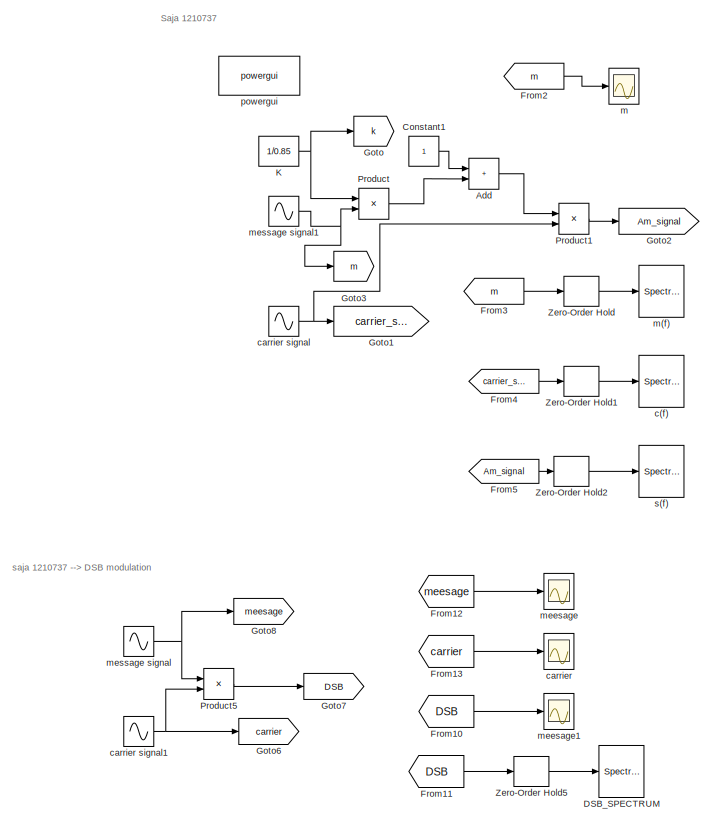
[diagram: root canvas - part 1/4, top left region]
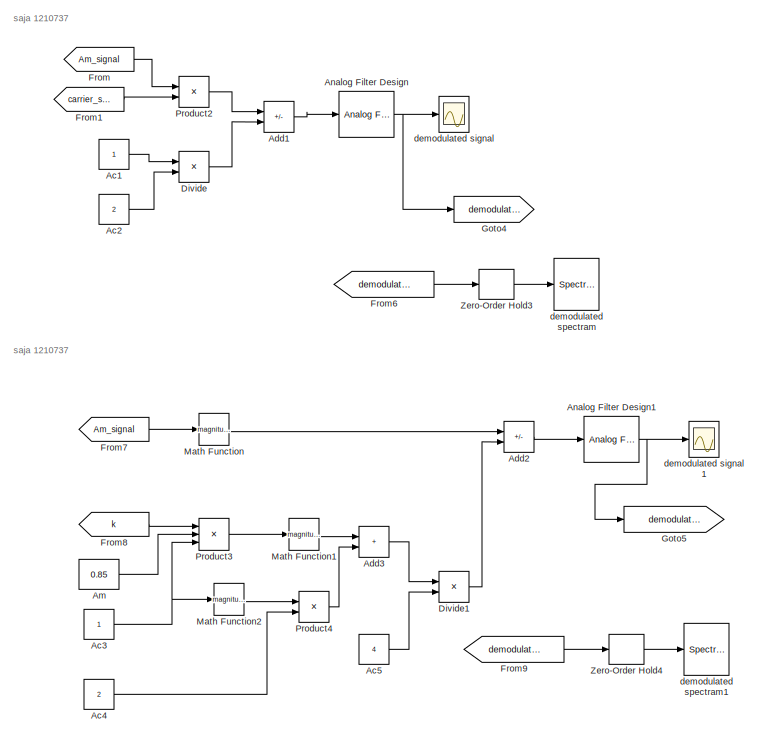
[diagram: root canvas - part 2/4, top right region]
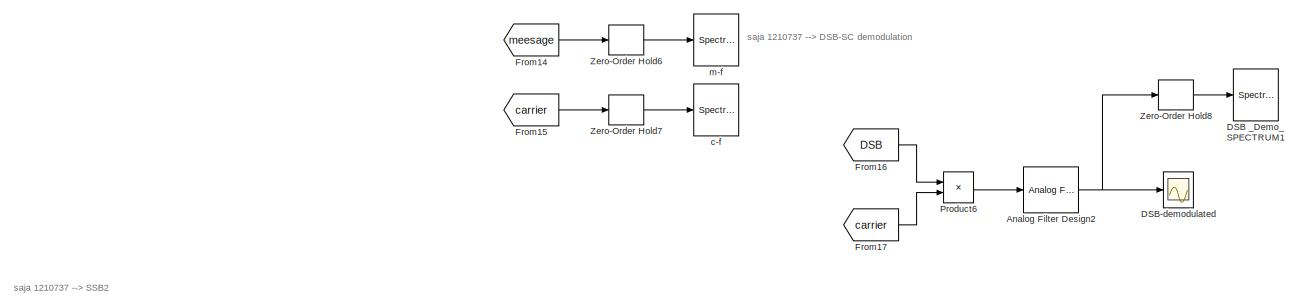
[diagram: root canvas - part 3/4, full width, middle band]
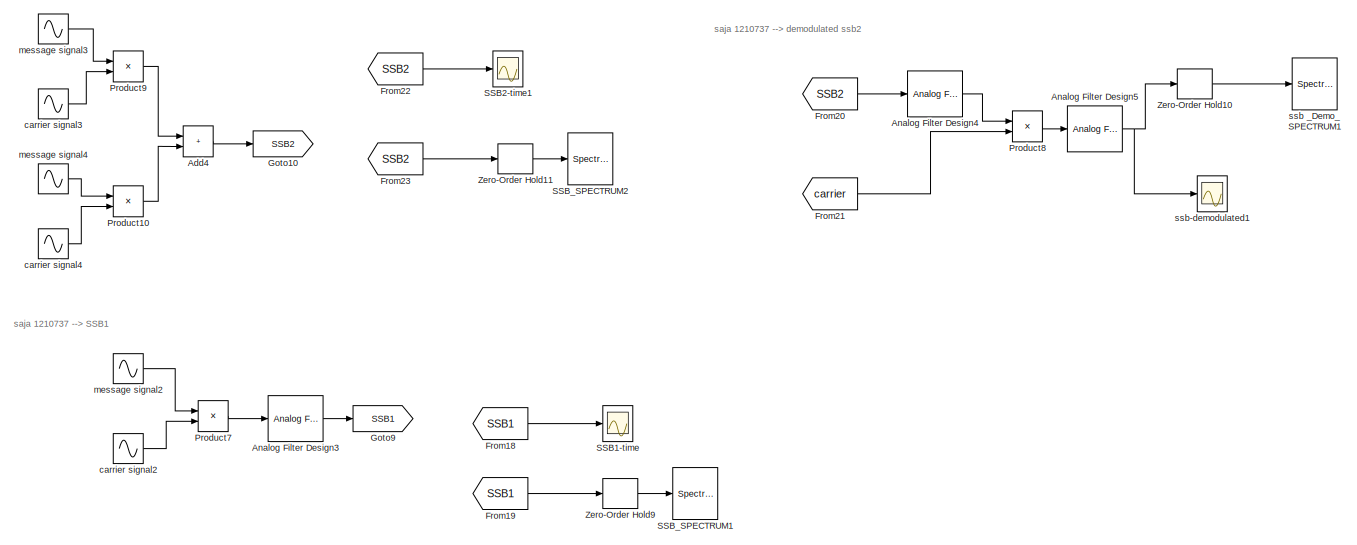
[diagram: root canvas - part 4/4, full width, bottom band]
MODEL slx_7dcb6b76a4d7
KIND model
CONFIG AbsTol = auto
CONFIG EnableMultiTasking = off
CONFIG FixedStep = auto
CONFIG MaxStep = 1e-6
CONFIG MinStep = auto
CONFIG RelTol = 1e-3
CONFIG SampleTimeConstraint = Unconstrained
CONFIG SolverName = ode23t
CONFIG StartTime = 0.0
CONFIG StopTime = 1
BLOCK [Constant] Ac1
BLOCK [Constant] Ac2
  Value = 2
BLOCK [Constant] Ac3
BLOCK [Constant] Ac4
  Value = 2
BLOCK [Constant] Ac5
  Value = 4
BLOCK [Sum] Add
  IconShape = rectangular
  Ports = [2, 1]
BLOCK [Sum] Add1
  IconShape = rectangular
  Inputs = +-
  Ports = [2, 1]
BLOCK [Sum] Add2
  IconShape = rectangular
  Inputs = +-
  Ports = [2, 1]
BLOCK [Sum] Add3
  IconShape = rectangular
  Ports = [2, 1]
BLOCK [Sum] Add4
  IconShape = rectangular
  Ports = [2, 1]
BLOCK [Constant] Am
  Value = 0.85
BLOCK [Reference] Analog Filter Design  REF=dsparch4/Analog
Filter Design
  Ports = [1, 1]
  SourceBlock = dsparch4/Analog\nFilter Design
  SourceProductBaseCode = DS
  SourceType = Analog Filter Design
BLOCK [Reference] Analog Filter Design1  REF=dsparch4/Analog
Filter Design
  Ports = [1, 1]
  SourceBlock = dsparch4/Analog\nFilter Design
  SourceProductBaseCode = DS
  SourceType = Analog Filter Design
BLOCK [Reference] Analog Filter Design2  REF=dsparch4/Analog
Filter Design
  Ports = [1, 1]
  SourceBlock = dsparch4/Analog\nFilter Design
  SourceProductBaseCode = DS
  SourceType = Analog Filter Design
BLOCK [Reference] Analog Filter Design3  REF=dsparch4/Analog
Filter Design
  Ports = [1, 1]
  SourceBlock = dsparch4/Analog\nFilter Design
  SourceProductBaseCode = DS
  SourceType = Analog Filter Design
BLOCK [Reference] Analog Filter Design4  REF=dsparch4/Analog
Filter Design
  Ports = [1, 1]
  SourceBlock = dsparch4/Analog\nFilter Design
  SourceProductBaseCode = DS
  SourceType = Analog Filter Design
BLOCK [Reference] Analog Filter Design5  REF=dsparch4/Analog
Filter Design
  Ports = [1, 1]
  SourceBlock = dsparch4/Analog\nFilter Design
  SourceProductBaseCode = DS
  SourceType = Analog Filter Design
BLOCK [Constant] Constant1
BLOCK [SpectrumAnalyzer] DSB _Demo_SPECTRUM1
  Ports = [1]
  ScopeSpecificationString = spbscopes.SpectrumAnalyzerBlockCfg('CurrentConfiguration', extmgr.ConfigurationSet(extmgr.Configuration('Core','General UI',true),extmgr.Configuration('Core','Source UI',true),extmgr.Configuration('Sources','WiredSimulink',true),extmgr.Configuration('Visuals','Spectrum',true,'AxesProperties',struct('Color',{[0 0 0],[0 0 0]},'XColor',{[0.686274509803922 0.686274509803922 0.686274509803922],[0.68627...<+2149ch>
BLOCK [Scope] DSB-demodulated
  Floating = off
  NumInputPorts = 1
  Ports = [1]
  ScopeSpecificationString = Simulink.scopes.TimeScopeBlockCfg('CurrentConfiguration', extmgr.ConfigurationSet(extmgr.Configuration('Core','General UI',true),extmgr.Configuration('Core','Source UI',true),extmgr.Configuration('Sources','WiredSimulink',true,'DataLoggingVariableName','ScopeData1'),extmgr.Configuration('Visuals','Time Domain',true,'SerializedDisplays',{struct('MinYLimReal','-0.52193','MaxYLimReal','0.52076','YLab...<+1448ch>
BLOCK [SpectrumAnalyzer] DSB_SPECTRUM
  Ports = [1]
  ScopeSpecificationString = spbscopes.SpectrumAnalyzerBlockCfg('CurrentConfiguration', extmgr.ConfigurationSet(extmgr.Configuration('Core','General UI',true),extmgr.Configuration('Core','Source UI',true),extmgr.Configuration('Sources','WiredSimulink',true),extmgr.Configuration('Visuals','Spectrum',true,'AxesProperties',struct('Color',{[0 0 0],[0 0 0]},'XColor',{[0.686274509803922 0.686274509803922 0.686274509803922],[0.68627...<+2137ch>  <repeated x3 — deduplicated; at blocks: DSB_SPECTRUM, SSB_SPECTRUM1, SSB_SPECTRUM2>
BLOCK [Product] Divide
  Inputs = */
  Ports = [2, 1]
BLOCK [Product] Divide1
  Inputs = */
  Ports = [2, 1]
BLOCK [From] From
  GotoTag = Am_signal
BLOCK [From] From1
  GotoTag = carrier_signal
BLOCK [From] From10
  GotoTag = DSB
BLOCK [From] From11
  GotoTag = DSB
BLOCK [From] From12
  GotoTag = meesage
BLOCK [From] From13
  GotoTag = carrier
BLOCK [From] From14
  GotoTag = meesage
BLOCK [From] From15
  GotoTag = carrier
BLOCK [From] From16
  GotoTag = DSB
BLOCK [From] From17
  GotoTag = carrier
BLOCK [From] From18
  GotoTag = SSB1
BLOCK [From] From19
  GotoTag = SSB1
BLOCK [From] From2
  GotoTag = m
BLOCK [From] From20
  GotoTag = SSB2
BLOCK [From] From21
  GotoTag = carrier
BLOCK [From] From22
  GotoTag = SSB2
BLOCK [From] From23
  GotoTag = SSB2
BLOCK [From] From3
  GotoTag = m
BLOCK [From] From4
  GotoTag = carrier_signal
BLOCK [From] From5
  GotoTag = Am_signal
BLOCK [From] From6
  GotoTag = demodulated
BLOCK [From] From7
  GotoTag = Am_signal
BLOCK [From] From8
  GotoTag = k
BLOCK [From] From9
  GotoTag = demodulated2
BLOCK [Goto] Goto
  GotoTag = k
BLOCK [Goto] Goto1
  GotoTag = carrier_signal
BLOCK [Goto] Goto10
  GotoTag = SSB2
BLOCK [Goto] Goto2
  GotoTag = Am_signal
BLOCK [Goto] Goto3
  GotoTag = m
BLOCK [Goto] Goto4
  GotoTag = demodulated
BLOCK [Goto] Goto5
  GotoTag = demodulated2
BLOCK [Goto] Goto6
  GotoTag = carrier
BLOCK [Goto] Goto7
  GotoTag = DSB
BLOCK [Goto] Goto8
  GotoTag = meesage
BLOCK [Goto] Goto9
  GotoTag = SSB1
BLOCK [Constant] K
  Value = 1/0.85
BLOCK [Math] Math Function
  Operator = magnitude^2
  Ports = [1, 1]
BLOCK [Math] Math Function1
  Operator = magnitude^2
  Ports = [1, 1]
BLOCK [Math] Math Function2
  Operator = magnitude^2
  Ports = [1, 1]
BLOCK [Product] Product
  Ports = [2, 1]
BLOCK [Product] Product1
  Ports = [2, 1]
BLOCK [Product] Product10
  Ports = [2, 1]
BLOCK [Product] Product2
  Ports = [2, 1]
BLOCK [Product] Product3
  Inputs = 3
  Ports = [3, 1]
BLOCK [Product] Product4
  Ports = [2, 1]
BLOCK [Product] Product5
  Ports = [2, 1]
BLOCK [Product] Product6
  Ports = [2, 1]
BLOCK [Product] Product7
  Ports = [2, 1]
BLOCK [Product] Product8
  Ports = [2, 1]
BLOCK [Product] Product9
  Ports = [2, 1]
BLOCK [Scope] SSB1-time
  Floating = off
  NumInputPorts = 1
  Ports = [1]
  ScopeSpecificationString = Simulink.scopes.TimeScopeBlockCfg('CurrentConfiguration', extmgr.ConfigurationSet(extmgr.Configuration('Core','General UI',true),extmgr.Configuration('Core','Source UI',true),extmgr.Configuration('Sources','WiredSimulink',true,'DataLoggingVariableName','ScopeData1'),extmgr.Configuration('Visuals','Time Domain',true,'SerializedDisplays',{struct('MinYLimReal','-0.591','MaxYLimReal','0.59162','YLabel...<+1444ch>
BLOCK [Scope] SSB2-time1
  Floating = off
  NumInputPorts = 1
  Ports = [1]
  ScopeSpecificationString = Simulink.scopes.TimeScopeBlockCfg('CurrentConfiguration', extmgr.ConfigurationSet(extmgr.Configuration('Core','General UI',true),extmgr.Configuration('Core','Source UI',true),extmgr.Configuration('Sources','WiredSimulink',true,'DataLoggingVariableName','ScopeData3'),extmgr.Configuration('Visuals','Time Domain',true,'SerializedDisplays',{struct('MinYLimReal','-2.08321','MaxYLimReal','2.12036','YLab...<+1448ch>
BLOCK [SpectrumAnalyzer] SSB_SPECTRUM1
  Ports = [1]
BLOCK [SpectrumAnalyzer] SSB_SPECTRUM2
  Ports = [1]
BLOCK [ZeroOrderHold] Zero-Order Hold
  SampleTime = 1/(10*1000)
BLOCK [ZeroOrderHold] Zero-Order Hold1
  SampleTime = 1/(10*15e3)
BLOCK [ZeroOrderHold] Zero-Order Hold10
  SampleTime = 1/(10*1000)
BLOCK [ZeroOrderHold] Zero-Order Hold11
  SampleTime = 1/(10*15e3)
BLOCK [ZeroOrderHold] Zero-Order Hold2
  SampleTime = 1/(10*15e3)
BLOCK [ZeroOrderHold] Zero-Order Hold3
  SampleTime = 1/(10*1000)
BLOCK [ZeroOrderHold] Zero-Order Hold4
  SampleTime = 1/(10*1000)
BLOCK [ZeroOrderHold] Zero-Order Hold5
  SampleTime = 1/(10*15e3)
BLOCK [ZeroOrderHold] Zero-Order Hold6
  SampleTime = 1/(10*1000)
BLOCK [ZeroOrderHold] Zero-Order Hold7
  SampleTime = 1/(10*15e3)
BLOCK [ZeroOrderHold] Zero-Order Hold8
  SampleTime = 1/(10*1000)
BLOCK [ZeroOrderHold] Zero-Order Hold9
  SampleTime = 1/(10*15e3)
BLOCK [SpectrumAnalyzer] c(f)
  Ports = [1]
  ScopeSpecificationString = spbscopes.SpectrumAnalyzerBlockCfg('CurrentConfiguration', extmgr.ConfigurationSet(extmgr.Configuration('Core','General UI',true),extmgr.Configuration('Core','Source UI',true),extmgr.Configuration('Sources','WiredSimulink',true),extmgr.Configuration('Visuals','Spectrum',true,'AxesProperties',struct('Color',{[0 0 0],[0 0 0]},'XColor',{[0.686274509803922 0.686274509803922 0.686274509803922],[0.68627...<+1996ch>
BLOCK [SpectrumAnalyzer] c-f
  Ports = [1]
  ScopeSpecificationString = spbscopes.SpectrumAnalyzerBlockCfg('CurrentConfiguration', extmgr.ConfigurationSet(extmgr.Configuration('Core','General UI',true),extmgr.Configuration('Core','Source UI',true),extmgr.Configuration('Sources','WiredSimulink',true),extmgr.Configuration('Visuals','Spectrum',true,'AxesProperties',struct('Color',{[0 0 0],[0 0 0]},'XColor',{[0.686274509803922 0.686274509803922 0.686274509803922],[0.68627...<+2093ch>
BLOCK [Scope] carrier
  Floating = off
  NumInputPorts = 1
  Ports = [1]
  ScopeSpecificationString = Simulink.scopes.TimeScopeBlockCfg('CurrentConfiguration', extmgr.ConfigurationSet(extmgr.Configuration('Core','General UI',true),extmgr.Configuration('Core','Source UI',true),extmgr.Configuration('Sources','WiredSimulink',true,'DataLoggingVariableName','ScopeData3'),extmgr.Configuration('Visuals','Time Domain',true,'SerializedDisplays',{struct('MinYLimReal','-1.25','MaxYLimReal','1.25','YLabelReal...<+1430ch>
BLOCK [Sin] carrier signal
  Frequency = 2*pi*15e3
  Phase = pi/2
  Ports = [0, 1]
  SampleTime = 0
BLOCK [Sin] carrier signal1
  Frequency = 2*pi*15e3
  Phase = pi/2
  Ports = [0, 1]
  SampleTime = 0
BLOCK [Sin] carrier signal2
  Frequency = 2*pi*15e3
  Phase = pi/2
  Ports = [0, 1]
  SampleTime = 0
BLOCK [Sin] carrier signal3
  Frequency = 2*pi*15e3
  Phase = pi/2
  Ports = [0, 1]
  SampleTime = 0
BLOCK [Sin] carrier signal4
  Frequency = 2*pi*15e3
  Phase = pi/2
  Ports = [0, 1]
  SampleTime = 0
BLOCK [Scope] demodulated signal 
  Floating = off
  NumInputPorts = 1
  Ports = [1]
  ScopeSpecificationString = Simulink.scopes.TimeScopeBlockCfg('CurrentConfiguration', extmgr.ConfigurationSet(extmgr.Configuration('Core','General UI',true),extmgr.Configuration('Core','Source UI',true),extmgr.Configuration('Sources','WiredSimulink',true),extmgr.Configuration('Visuals','Time Domain',true,'SerializedDisplays',{struct('MinYLimReal','-0.61403','MaxYLimReal','0.61266','YLabelReal','','MinYLimMag','0.00000','MaxY...<+1409ch>
BLOCK [Scope] demodulated signal 1
  Floating = off
  NumInputPorts = 1
  Ports = [1]
  ScopeSpecificationString = Simulink.scopes.TimeScopeBlockCfg('CurrentConfiguration', extmgr.ConfigurationSet(extmgr.Configuration('Core','General UI',true),extmgr.Configuration('Core','Source UI',true),extmgr.Configuration('Sources','WiredSimulink',true,'DataLoggingVariableName','ScopeData2'),extmgr.Configuration('Visuals','Time Domain',true,'SerializedDisplays',{struct('MinYLimReal','-1.22323','MaxYLimReal','1.22903','YLab...<+1448ch>
BLOCK [SpectrumAnalyzer] demodulated spectram
  Ports = [1]
  ScopeSpecificationString = spbscopes.SpectrumAnalyzerBlockCfg('CurrentConfiguration', extmgr.ConfigurationSet(extmgr.Configuration('Core','General UI',true),extmgr.Configuration('Core','Source UI',true),extmgr.Configuration('Sources','WiredSimulink',true),extmgr.Configuration('Visuals','Spectrum',true,'AxesProperties',struct('Color',{[0 0 0],[0 0 0]},'XColor',{[0.686274509803922 0.686274509803922 0.686274509803922],[0.68627...<+2121ch>
BLOCK [SpectrumAnalyzer] demodulated spectram1
  Ports = [1]
  ScopeSpecificationString = spbscopes.SpectrumAnalyzerBlockCfg('CurrentConfiguration', extmgr.ConfigurationSet(extmgr.Configuration('Core','General UI',true),extmgr.Configuration('Core','Source UI',true),extmgr.Configuration('Sources','WiredSimulink',true),extmgr.Configuration('Visuals','Spectrum',true,'AxesProperties',struct('Color',{[0 0 0],[0 0 0]},'XColor',{[0.686274509803922 0.686274509803922 0.686274509803922],[0.68627...<+2123ch>
BLOCK [Scope] m
  Floating = off
  NumInputPorts = 1
  Ports = [1]
  ScopeSpecificationString = Simulink.scopes.TimeScopeBlockCfg('CurrentConfiguration', extmgr.ConfigurationSet(extmgr.Configuration('Core','General UI',true),extmgr.Configuration('Core','Source UI',true),extmgr.Configuration('Sources','WiredSimulink',true,'DataLoggingVariableName','ScopeData1'),extmgr.Configuration('Visuals','Time Domain',true,'SerializedDisplays',{struct('MinYLimReal','-1.0625','MaxYLimReal','1.0625','YLabel...<+1442ch>
BLOCK [SpectrumAnalyzer] m(f)
  Ports = [1]
  ScopeSpecificationString = spbscopes.SpectrumAnalyzerBlockCfg('CurrentConfiguration', extmgr.ConfigurationSet(extmgr.Configuration('Core','General UI',true),extmgr.Configuration('Core','Source UI',true),extmgr.Configuration('Sources','WiredSimulink',true),extmgr.Configuration('Visuals','Spectrum',true,'AxesProperties',struct('Color',{[0 0 0],[0 0 0]},'XColor',{[0.686274509803922 0.686274509803922 0.686274509803922],[0.68627...<+2084ch>
BLOCK [SpectrumAnalyzer] m-f
  Ports = [1]
  ScopeSpecificationString = spbscopes.SpectrumAnalyzerBlockCfg('CurrentConfiguration', extmgr.ConfigurationSet(extmgr.Configuration('Core','General UI',true),extmgr.Configuration('Core','Source UI',true),extmgr.Configuration('Sources','WiredSimulink',true),extmgr.Configuration('Visuals','Spectrum',true,'AxesProperties',struct('Color',{[0 0 0],[0 0 0]},'XColor',{[0.686274509803922 0.686274509803922 0.686274509803922],[0.68627...<+2149ch>
BLOCK [Scope] meesage
  Floating = off
  NumInputPorts = 1
  Ports = [1]
  ScopeSpecificationString = Simulink.scopes.TimeScopeBlockCfg('CurrentConfiguration', extmgr.ConfigurationSet(extmgr.Configuration('Core','General UI',true),extmgr.Configuration('Core','Source UI',true),extmgr.Configuration('Sources','WiredSimulink',true,'DataLoggingVariableName','ScopeData1'),extmgr.Configuration('Visuals','Time Domain',true,'SerializedDisplays',{struct('MinYLimReal','-1.0625','MaxYLimReal','1.0625','YLabel...<+1442ch>
BLOCK [Scope] meesage1
  Floating = off
  NumInputPorts = 1
  Ports = [1]
  ScopeSpecificationString = Simulink.scopes.TimeScopeBlockCfg('CurrentConfiguration', extmgr.ConfigurationSet(extmgr.Configuration('Core','General UI',true),extmgr.Configuration('Core','Source UI',true),extmgr.Configuration('Sources','WiredSimulink',true,'DataLoggingVariableName','ScopeData2'),extmgr.Configuration('Visuals','Time Domain',true,'SerializedDisplays',{struct('MinYLimReal','-1.0416','MaxYLimReal','1.06018','YLabe...<+1446ch>
BLOCK [Sin] message signal
  Amplitude = 0.85
  Frequency = 2*pi*1000
  Phase = pi/2
  Ports = [0, 1]
  SampleTime = 0
BLOCK [Sin] message signal1
  Amplitude = 0.85
  Frequency = 2*pi*1000
  Phase = pi/2
  Ports = [0, 1]
  SampleTime = 0
BLOCK [Sin] message signal2
  Amplitude = 0.85
  Frequency = 2*pi*1000
  Phase = pi/2
  Ports = [0, 1]
  SampleTime = 0
BLOCK [Sin] message signal3
  Amplitude = 0.85
  Frequency = 2*pi*1000
  Phase = pi/2
  Ports = [0, 1]
  SampleTime = 0
BLOCK [Sin] message signal4
  Amplitude = 0.85
  Frequency = 2*pi*1000
  Phase = pi/2
  Ports = [0, 1]
  SampleTime = 0
BLOCK [Reference] powergui  REF=spspowerguiLib/powergui
  Ports = []
  Priority = 1
  SourceBlock = spspowerguiLib/powergui
  SourceProductBaseCode = PS
  SourceType = PSB option menu block
BLOCK [SpectrumAnalyzer] s(f)
  Ports = [1]
  ScopeSpecificationString = spbscopes.SpectrumAnalyzerBlockCfg('CurrentConfiguration', extmgr.ConfigurationSet(extmgr.Configuration('Core','General UI',true),extmgr.Configuration('Core','Source UI',true),extmgr.Configuration('Sources','WiredSimulink',true),extmgr.Configuration('Visuals','Spectrum',true,'AxesProperties',struct('Color',{[0 0 0],[0 0 0]},'XColor',{[0.686274509803922 0.686274509803922 0.686274509803922],[0.68627...<+2041ch>
BLOCK [SpectrumAnalyzer] ssb _Demo_SPECTRUM1
  Ports = [1]
  ScopeSpecificationString = spbscopes.SpectrumAnalyzerBlockCfg('CurrentConfiguration', extmgr.ConfigurationSet(extmgr.Configuration('Core','General UI',true),extmgr.Configuration('Core','Source UI',true),extmgr.Configuration('Sources','WiredSimulink',true),extmgr.Configuration('Visuals','Spectrum',true,'AxesProperties',struct('Color',{[0 0 0],[0 0 0]},'XColor',{[0.686274509803922 0.686274509803922 0.686274509803922],[0.68627...<+2151ch>
BLOCK [Scope] ssb-demodulated1
  Floating = off
  NumInputPorts = 1
  Ports = [1]
  ScopeSpecificationString = Simulink.scopes.TimeScopeBlockCfg('CurrentConfiguration', extmgr.ConfigurationSet(extmgr.Configuration('Core','General UI',true),extmgr.Configuration('Core','Source UI',true),extmgr.Configuration('Sources','WiredSimulink',true,'DataLoggingVariableName','ScopeData2'),extmgr.Configuration('Visuals','Time Domain',true,'SerializedDisplays',{struct('MinYLimReal','-0.52097','MaxYLimReal','0.51984','YLab...<+1474ch>
ANNOTATION (root): Saja 1210737
ANNOTATION (root): saja 1210737
ANNOTATION (root): saja 1210737 --> DSB modulation
ANNOTATION (root): saja 1210737 --> DSB-SC demodulation
ANNOTATION (root): saja 1210737 --> SSB1
ANNOTATION (root): saja 1210737 --> SSB2
ANNOTATION (root): saja 1210737 --> demodulated ssb2
LINE Ac1:1 -> Divide:1
LINE Ac2:1 -> Divide:2
NET Ac3:1 -> Math Function2:1, Product3:3
LINE Ac4:1 -> Product4:2
LINE Ac5:1 -> Divide1:2
LINE Add1:1 -> Analog Filter Design:1
LINE Add2:1 -> Analog Filter Design1:1
LINE Add3:1 -> Divide1:1
LINE Add4:1 -> Goto10:1
LINE Add:1 -> Product1:1
LINE Am:1 -> Product3:2
NET Analog Filter Design1:1 -> Goto5:1, demodulated signal 1:1
NET Analog Filter Design2:1 -> DSB-demodulated:1, Zero-Order Hold8:1
LINE Analog Filter Design3:1 -> Goto9:1
LINE Analog Filter Design4:1 -> Product8:1
NET Analog Filter Design5:1 -> Zero-Order Hold10:1, ssb-demodulated1:1
NET Analog Filter Design:1 -> Goto4:1, demodulated signal :1
LINE Constant1:1 -> Add:1
LINE Divide1:1 -> Add2:2
LINE Divide:1 -> Add1:2
LINE From10:1 -> meesage1:1
LINE From11:1 -> Zero-Order Hold5:1
LINE From12:1 -> meesage:1
LINE From13:1 -> carrier:1
LINE From14:1 -> Zero-Order Hold6:1
LINE From15:1 -> Zero-Order Hold7:1
LINE From16:1 -> Product6:1
LINE From17:1 -> Product6:2
LINE From18:1 -> SSB1-time:1
LINE From19:1 -> Zero-Order Hold9:1
LINE From1:1 -> Product2:2
LINE From20:1 -> Analog Filter Design4:1
LINE From21:1 -> Product8:2
LINE From22:1 -> SSB2-time1:1
LINE From23:1 -> Zero-Order Hold11:1
LINE From2:1 -> m:1
LINE From3:1 -> Zero-Order Hold:1
LINE From4:1 -> Zero-Order Hold1:1
LINE From5:1 -> Zero-Order Hold2:1
LINE From6:1 -> Zero-Order Hold3:1
LINE From7:1 -> Math Function:1
LINE From8:1 -> Product3:1
LINE From9:1 -> Zero-Order Hold4:1
LINE From:1 -> Product2:1
NET K:1 -> Goto:1, Product:1
LINE Math Function1:1 -> Add3:1
LINE Math Function2:1 -> Product4:1
LINE Math Function:1 -> Add2:1
LINE Product10:1 -> Add4:2
LINE Product1:1 -> Goto2:1
LINE Product2:1 -> Add1:1
LINE Product3:1 -> Math Function1:1
LINE Product4:1 -> Add3:2
LINE Product5:1 -> Goto7:1
LINE Product6:1 -> Analog Filter Design2:1
LINE Product7:1 -> Analog Filter Design3:1
LINE Product8:1 -> Analog Filter Design5:1
LINE Product9:1 -> Add4:1
LINE Product:1 -> Add:2
LINE Zero-Order Hold10:1 -> ssb _Demo_SPECTRUM1:1
LINE Zero-Order Hold11:1 -> SSB_SPECTRUM2:1
LINE Zero-Order Hold1:1 -> c(f):1
LINE Zero-Order Hold2:1 -> s(f):1
LINE Zero-Order Hold3:1 -> demodulated spectram:1
LINE Zero-Order Hold4:1 -> demodulated spectram1:1
LINE Zero-Order Hold5:1 -> DSB_SPECTRUM:1
LINE Zero-Order Hold6:1 -> m-f:1
LINE Zero-Order Hold7:1 -> c-f:1
LINE Zero-Order Hold8:1 -> DSB _Demo_SPECTRUM1:1
LINE Zero-Order Hold9:1 -> SSB_SPECTRUM1:1
LINE Zero-Order Hold:1 -> m(f):1
NET carrier signal1:1 -> Goto6:1, Product5:2
LINE carrier signal2:1 -> Product7:2
LINE carrier signal3:1 -> Product9:2
LINE carrier signal4:1 -> Product10:2
NET carrier signal:1 -> Goto1:1, Product1:2
NET message signal1:1 -> Goto3:1, Product:2
LINE message signal2:1 -> Product7:1
LINE message signal3:1 -> Product9:1
LINE message signal4:1 -> Product10:1
NET message signal:1 -> Goto8:1, Product5:1
note: NET lines group one-source signal fan-out (src -> all destinations, sorted); 1:1 wires keep LINE
